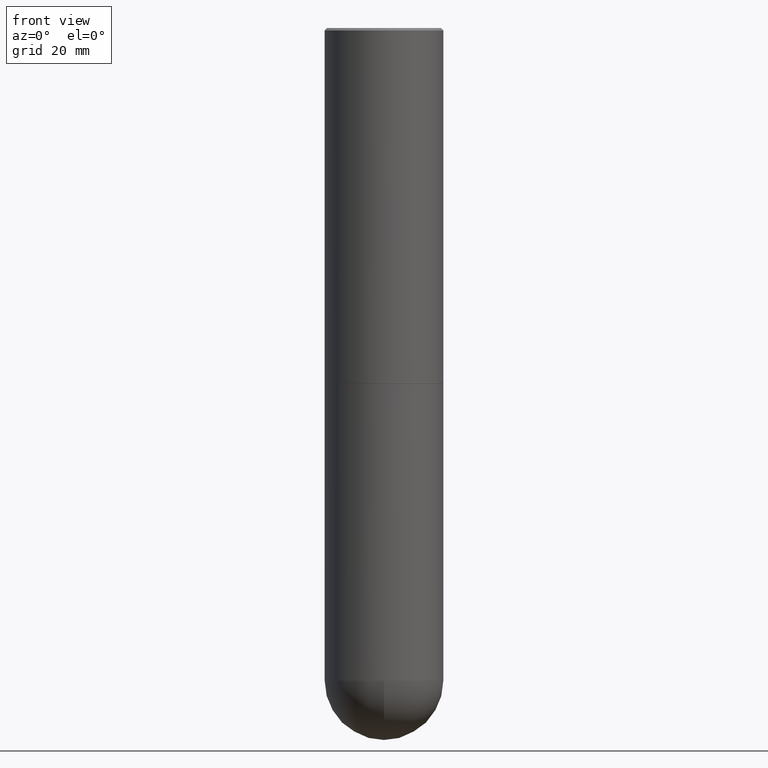
[diagram: clean part render]
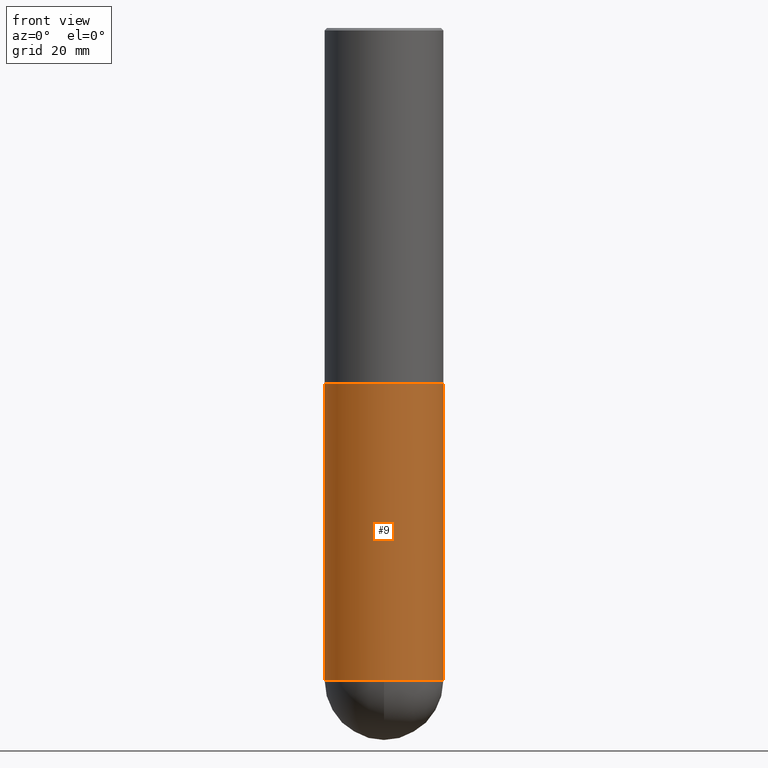
[diagram: same view with one face highlighted and labeled with its STEP entity id]
A machine part, front view. The second image highlights one B-rep face of the part: STEP entity #9.
In plain terms, the highlighted cylindrical surface (partial cylindrical patch) has radius 12.5006 mm, axis along (-0, 0, 1).
Its self-contained STEP definition (entity closure, byte-faithful):
#4 = ORIENTED_EDGE ( 'NONE', *, *, #162, .T. ) ;
#9 = ADVANCED_FACE ( 'NONE', ( #134 ), #102, .T. ) ;
#11 = CARTESIAN_POINT ( 'NONE',  ( -3.496936074043201946E-15, -0.4921500000000192387, -5.413349999999997664 ) ) ;
#24 = CARTESIAN_POINT ( 'NONE',  ( -0.4921499999999999764, -1.110801765337101862E-14, -5.413349999999999440 ) ) ;
#30 = ORIENTED_EDGE ( 'NONE', *, *, #375, .F. ) ;
#34 = ORIENTED_EDGE ( 'NONE', *, *, #94, .T. ) ;
#41 = EDGE_LOOP ( 'NONE', ( #30, #34, #390, #4, #125 ) ) ;
#43 = VERTEX_POINT ( 'NONE', #336 ) ;
#54 = DIRECTION ( 'NONE',  ( -2.445468806185136877E-29, 3.491481338843145188E-15, 1.000000000000000000 ) ) ;
#78 = VERTEX_POINT ( 'NONE', #24 ) ;
#79 = CARTESIAN_POINT ( 'NONE',  ( -0.4921499999999999764, 3.496936074043332897E-15, -2.420853904668951509E-29 ) ) ;
#94 = EDGE_CURVE ( 'NONE', #78, #378, #303, .T. ) ;
#101 = DIRECTION ( 'NONE',  ( -2.445468806185136597E-29, 3.491481338843145583E-15, 1.000000000000000000 ) ) ;
#102 = CYLINDRICAL_SURFACE ( 'NONE', #211, 0.4921499999999999764 ) ;
#123 = VERTEX_POINT ( 'NONE', #256 ) ;
#125 = ORIENTED_EDGE ( 'NONE', *, *, #310, .F. ) ;
#128 = VECTOR ( 'NONE', #373, 39.37007874015748143 ) ;
#134 = FACE_OUTER_BOUND ( 'NONE', #41, .T. ) ;
#136 = CARTESIAN_POINT ( 'NONE',  ( 0.4921499999999999764, -3.436665081823295777E-15, 2.399810400207969603E-29 ) ) ;
#152 = DIRECTION ( 'NONE',  ( -2.445468806185136597E-29, 3.491481338843145583E-15, 1.000000000000000000 ) ) ;
#154 = AXIS2_PLACEMENT_3D ( 'NONE', #160, #165, #253 ) ;
#159 = LINE ( 'NONE', #79, #251 ) ;
#160 = CARTESIAN_POINT ( 'NONE',  ( 1.323817856196230713E-28, -1.890061050562653856E-14, -5.413349999999999440 ) ) ;
#162 = EDGE_CURVE ( 'NONE', #285, #123, #405, .T. ) ;
#165 = DIRECTION ( 'NONE',  ( -2.445468806185136597E-29, 3.491481338843145583E-15, 1.000000000000000000 ) ) ;
#172 = DIRECTION ( 'NONE',  ( -2.445468806185136597E-29, 3.491481338843145583E-15, 1.000000000000000000 ) ) ;
#174 = CARTESIAN_POINT ( 'NONE',  ( 0.000000000000000000, 0.000000000000000000, 0.000000000000000000 ) ) ;
#199 = DIRECTION ( 'NONE',  ( 1.000000000000000000, -6.982962677686265922E-15, 4.876176775795935793E-29 ) ) ;
#211 = AXIS2_PLACEMENT_3D ( 'NONE', #174, #172, #199 ) ;
#222 = CIRCLE ( 'NONE', #262, 0.4921499999999999764 ) ;
#227 = CARTESIAN_POINT ( 'NONE',  ( 1.323817856196230713E-28, -1.890061050562653856E-14, -5.413349999999999440 ) ) ;
#251 = VECTOR ( 'NONE', #54, 39.37007874015748143 ) ;
#253 = DIRECTION ( 'NONE',  ( 1.000000000000000000, -6.982962677686265922E-15, 0.000000000000000000 ) ) ;
#256 = CARTESIAN_POINT ( 'NONE',  ( 0.4921499999999999764, -1.374596203102545079E-14, -2.952700000000000102 ) ) ;
#262 = AXIS2_PLACEMENT_3D ( 'NONE', #381, #152, #387 ) ;
#265 = CARTESIAN_POINT ( 'NONE',  ( 0.4921499999999999764, -1.804161880923764651E-14, -5.413349999999999440 ) ) ;
#278 = AXIS2_PLACEMENT_3D ( 'NONE', #227, #101, #347 ) ;
#280 = EDGE_CURVE ( 'NONE', #378, #285, #366, .T. ) ;
#285 = VERTEX_POINT ( 'NONE', #265 ) ;
#303 = CIRCLE ( 'NONE', #278, 0.4921499999999999764 ) ;
#310 = EDGE_CURVE ( 'NONE', #43, #123, #222, .T. ) ;
#336 = CARTESIAN_POINT ( 'NONE',  ( -0.4921499999999999764, -1.110801765337101547E-14, -2.952700000000000102 ) ) ;
#347 = DIRECTION ( 'NONE',  ( 1.000000000000000000, -6.982962677686265922E-15, 0.000000000000000000 ) ) ;
#366 = CIRCLE ( 'NONE', #154, 0.4921499999999999764 ) ;
#373 = DIRECTION ( 'NONE',  ( -2.445468806185136877E-29, 3.491481338843145188E-15, 1.000000000000000000 ) ) ;
#375 = EDGE_CURVE ( 'NONE', #78, #43, #159, .T. ) ;
#378 = VERTEX_POINT ( 'NONE', #11 ) ;
#381 = CARTESIAN_POINT ( 'NONE',  ( 7.220735744022852519E-29, -1.030929694920215502E-14, -2.952700000000000102 ) ) ;
#387 = DIRECTION ( 'NONE',  ( 1.000000000000000000, -6.982962677686265922E-15, 0.000000000000000000 ) ) ;
#390 = ORIENTED_EDGE ( 'NONE', *, *, #280, .T. ) ;
#405 = LINE ( 'NONE', #136, #128 ) ;